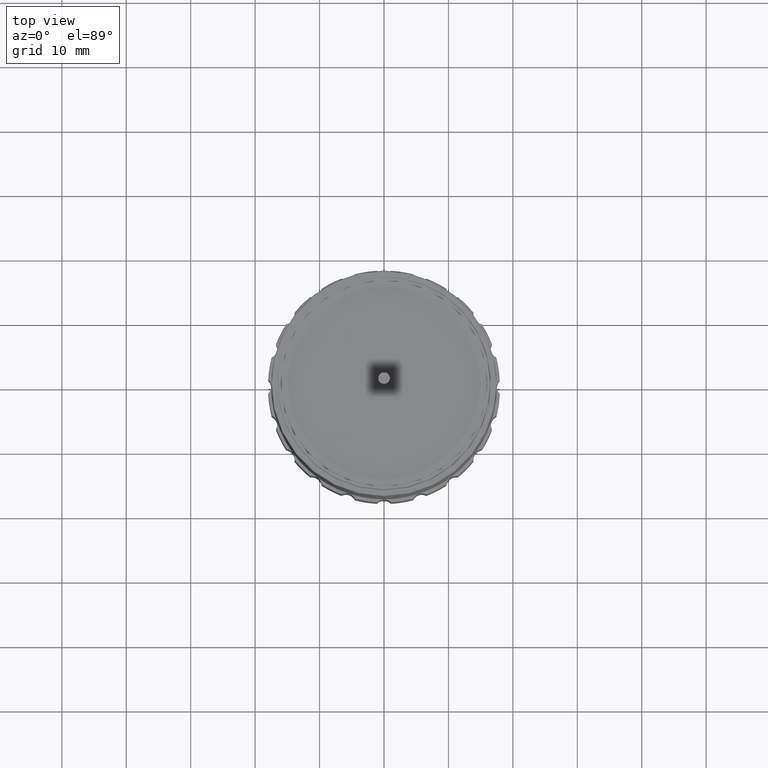
[diagram: clean part render]
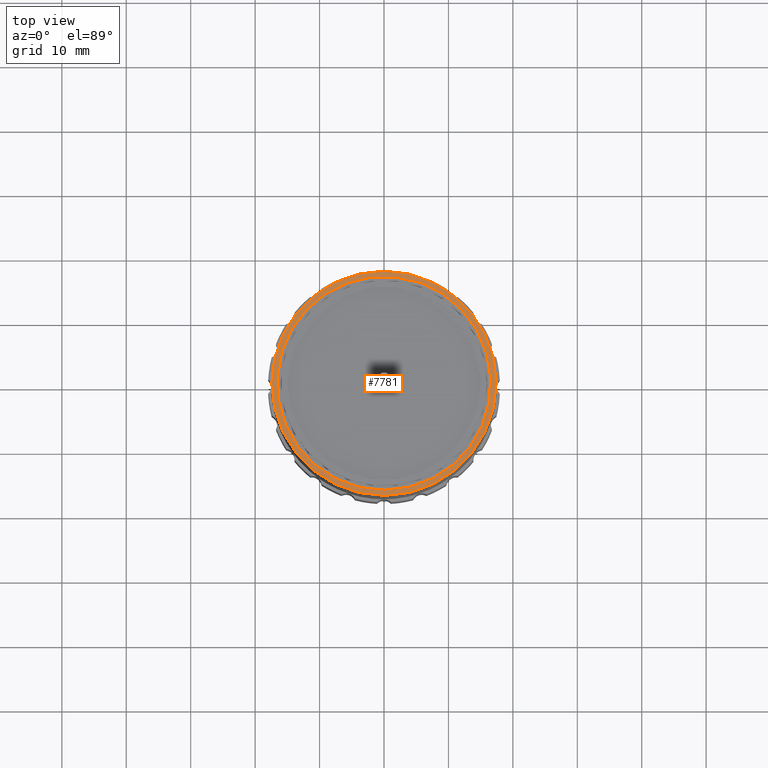
[diagram: same view with one face highlighted and labeled with its STEP entity id]
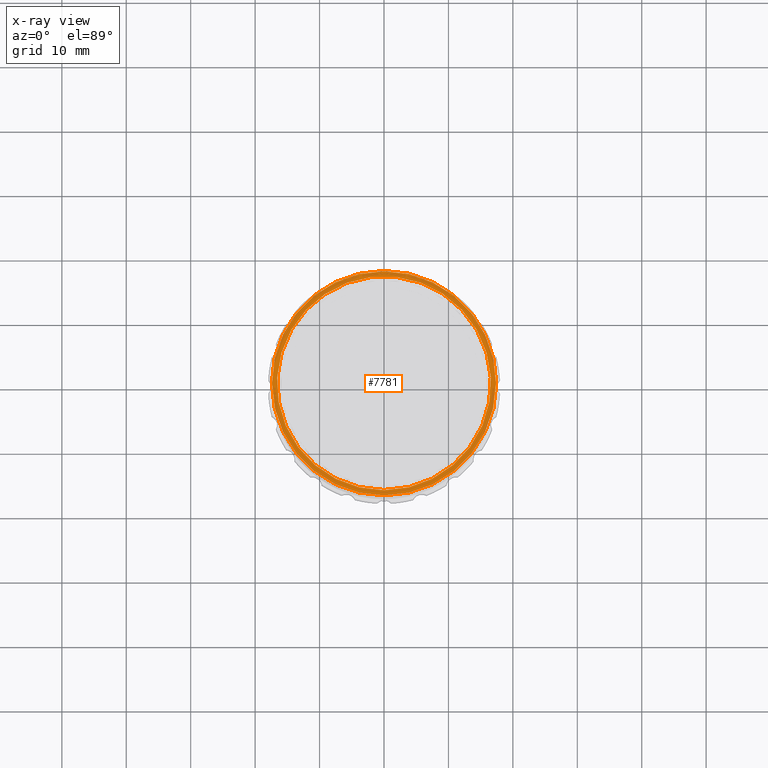
[diagram: x-ray of the same camera — body ghosted, the highlighted face saturated]
A machine part, top view. The second image highlights one B-rep face of the part: STEP entity #7781.
The next image is the same camera in x-ray: the body ghosted, the highlighted face saturated — about 0% of this face is hidden behind the body in this view.
In plain terms, the highlighted planar face has unit normal (0, 0, 1).
Its self-contained STEP definition (entity closure, byte-faithful):
#143 = ORIENTED_EDGE ( 'NONE', *, *, #2949, .F. ) ;
#266 = ORIENTED_EDGE ( 'NONE', *, *, #2424, .T. ) ;
#355 = DIRECTION ( 'NONE',  ( 0.000000000000000000, -1.982541115402066836E-16, -1.000000000000000000 ) ) ;
#421 = FACE_OUTER_BOUND ( 'NONE', #8012, .T. ) ;
#1121 = DIRECTION ( 'NONE',  ( 1.000000000000000000, 0.000000000000000000, -0.000000000000000000 ) ) ;
#1137 = DIRECTION ( 'NONE',  ( 0.000000000000000000, 1.000000000000000000, 0.000000000000000000 ) ) ;
#1209 = CARTESIAN_POINT ( 'NONE',  ( 0.000000000000000000, 0.000000000000000000, 55.00000000000000000 ) ) ;
#1317 = CIRCLE ( 'NONE', #4381, 17.40000000000000568 ) ;
#1710 = CARTESIAN_POINT ( 'NONE',  ( 0.000000000000000000, 1.982541115402261277E-17, 55.00000000000000711 ) ) ;
#1779 = PLANE ( 'NONE',  #3368 ) ;
#2138 = EDGE_LOOP ( 'NONE', ( #266 ) ) ;
#2424 = EDGE_CURVE ( 'NONE', #3527, #3527, #6043, .T. ) ;
#2425 = FACE_BOUND ( 'NONE', #2138, .T. ) ;
#2949 = EDGE_CURVE ( 'NONE', #6950, #6950, #1317, .T. ) ;
#3069 = DIRECTION ( 'NONE',  ( 0.000000000000000000, -1.000000000000000000, 4.180056568618811004E-16 ) ) ;
#3368 = AXIS2_PLACEMENT_3D ( 'NONE', #1209, #4431, #1121 ) ;
#3527 = VERTEX_POINT ( 'NONE', #7569 ) ;
#3573 = CARTESIAN_POINT ( 'NONE',  ( 0.000000000000000000, 17.40000000000000568, 55.00000000000000711 ) ) ;
#4381 = AXIS2_PLACEMENT_3D ( 'NONE', #1710, #355, #1137 ) ;
#4431 = DIRECTION ( 'NONE',  ( 0.000000000000000000, 0.000000000000000000, 1.000000000000000000 ) ) ;
#6043 = CIRCLE ( 'NONE', #7752, 16.60000000000000497 ) ;
#6950 = VERTEX_POINT ( 'NONE', #3573 ) ;
#7569 = CARTESIAN_POINT ( 'NONE',  ( -3.712308238590367182E-13, -16.60000000000000497, 55.00000000000001421 ) ) ;
#7724 = DIRECTION ( 'NONE',  ( -2.090028284309406242E-16, -2.090028284309406488E-16, -1.000000000000000000 ) ) ;
#7752 = AXIS2_PLACEMENT_3D ( 'NONE', #8429, #7724, #3069 ) ;
#7781 = ADVANCED_FACE ( 'NONE', ( #421, #2425 ), #1779, .T. ) ;
#8012 = EDGE_LOOP ( 'NONE', ( #143 ) ) ;
#8429 = CARTESIAN_POINT ( 'NONE',  ( -3.712308238590367182E-13, 1.450248452098822364E-30, 55.00000000000000711 ) ) ;